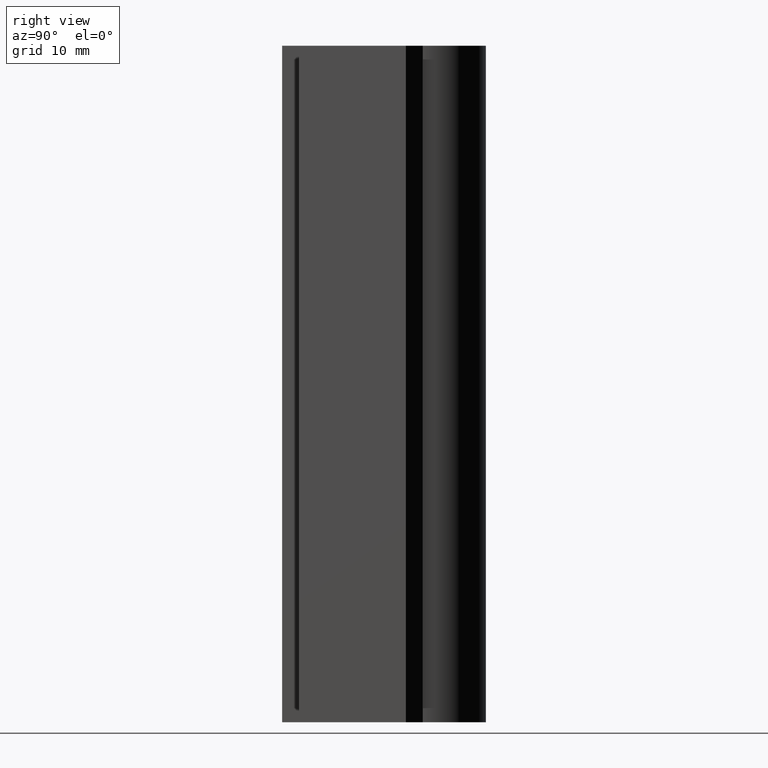
[diagram: clean part render]
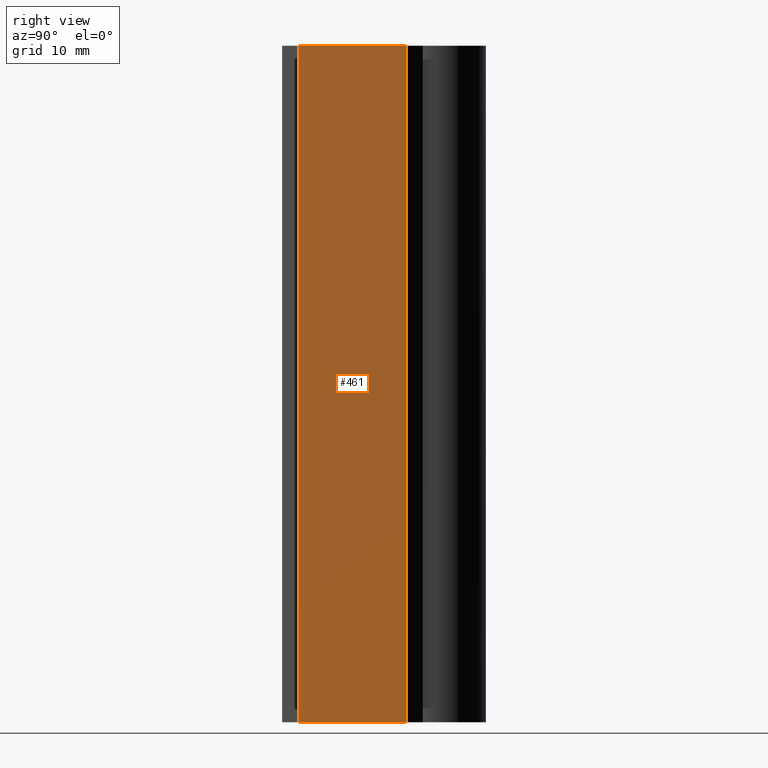
[diagram: same view with one face highlighted and labeled with its STEP entity id]
A machine part, right view. The second image highlights one B-rep face of the part: STEP entity #461.
In plain terms, the highlighted planar face has unit normal (1, 0, 0).
Its self-contained STEP definition (entity closure, byte-faithful):
#49=FACE_OUTER_BOUND('',#74,.T.);
#74=EDGE_LOOP('',(#365,#366,#367,#368));
#126=LINE('',#753,#181);
#128=LINE('',#757,#183);
#129=LINE('',#759,#184);
#130=LINE('',#760,#185);
#181=VECTOR('',#618,10.);
#183=VECTOR('',#622,10.);
#184=VECTOR('',#623,10.);
#185=VECTOR('',#624,10.);
#226=VERTEX_POINT('',#750);
#227=VERTEX_POINT('',#752);
#228=VERTEX_POINT('',#756);
#229=VERTEX_POINT('',#758);
#284=EDGE_CURVE('',#227,#226,#126,.T.);
#286=EDGE_CURVE('',#226,#228,#128,.T.);
#287=EDGE_CURVE('',#229,#228,#129,.T.);
#288=EDGE_CURVE('',#229,#227,#130,.T.);
#365=ORIENTED_EDGE('',*,*,#286,.T.);
#366=ORIENTED_EDGE('',*,*,#287,.F.);
#367=ORIENTED_EDGE('',*,*,#288,.T.);
#368=ORIENTED_EDGE('',*,*,#284,.T.);
#437=PLANE('',#516);
#461=ADVANCED_FACE('',(#49),#437,.T.);
#516=AXIS2_PLACEMENT_3D('',#755,#620,#621);
#618=DIRECTION('',(0.,0.,1.));
#620=DIRECTION('center_axis',(1.,5.62138240316535E-16,0.));
#621=DIRECTION('ref_axis',(0.,0.,-1.));
#622=DIRECTION('',(5.62138240316535E-16,-1.,0.));
#623=DIRECTION('',(0.,0.,1.));
#624=DIRECTION('',(-5.62138240316535E-16,1.,0.));
#750=CARTESIAN_POINT('',(0.124313239995235,18.8025117127487,100.));
#752=CARTESIAN_POINT('',(0.124313239995235,18.8025117127487,0.));
#753=CARTESIAN_POINT('',(0.124313239995235,18.8025117127487,0.));
#755=CARTESIAN_POINT('Origin',(0.124313239995235,18.8025117127487,0.));
#756=CARTESIAN_POINT('',(0.124313239995244,3.00251171274874,100.));
#757=CARTESIAN_POINT('',(0.124313239995244,3.00251171274874,100.));
#758=CARTESIAN_POINT('',(0.124313239995244,3.00251171274874,0.));
#759=CARTESIAN_POINT('',(0.124313239995244,3.00251171274874,0.));
#760=CARTESIAN_POINT('',(0.124313239995244,3.00251171274874,0.));